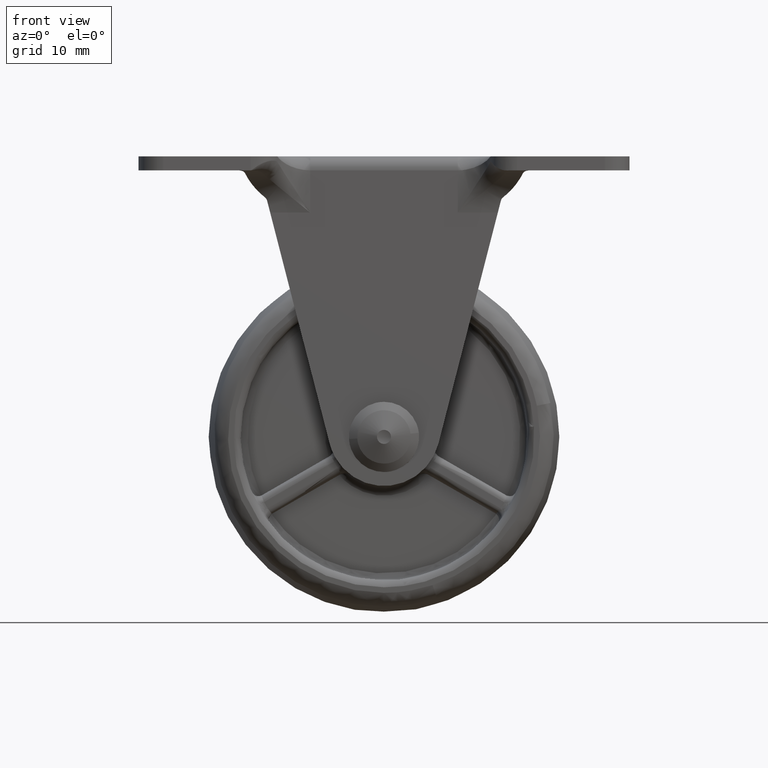
[diagram: clean part render]
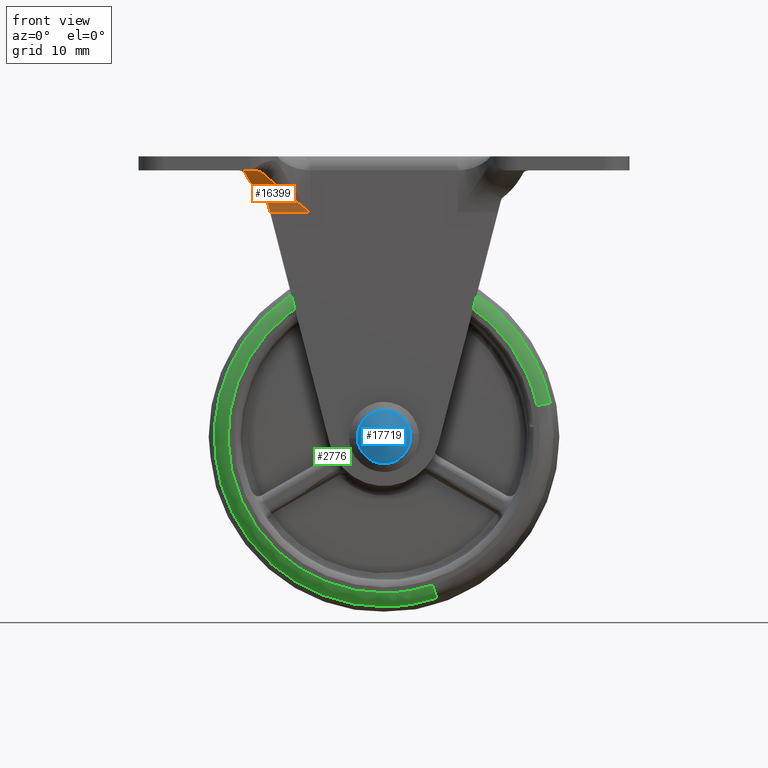
[diagram: same view with three faces highlighted in distinct colors, each labeled with its STEP entity id]
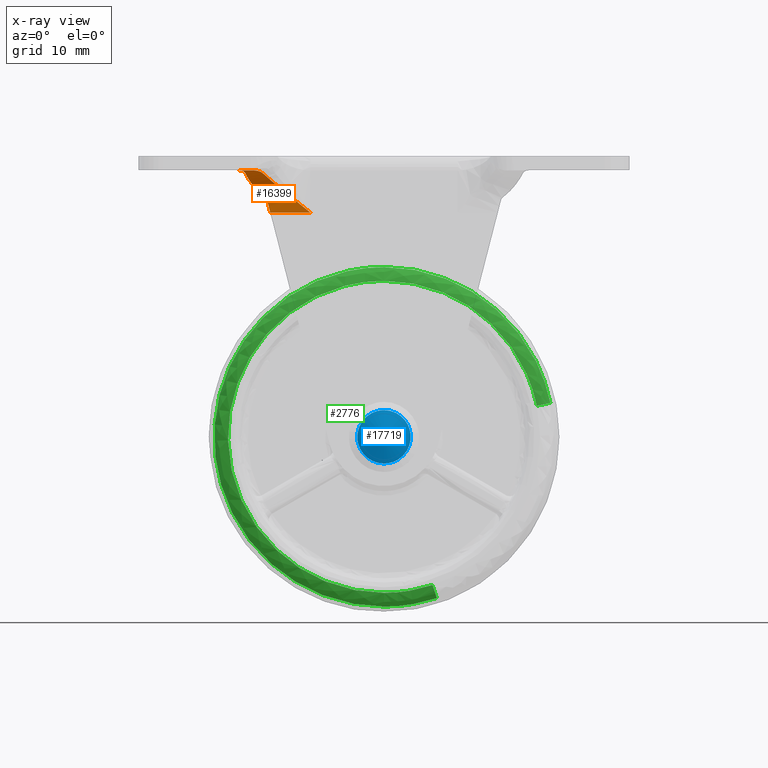
[diagram: x-ray of the same camera — body ghosted, the three highlighted faces saturated]
A machine part, front view with three faces highlighted in distinct colors.
The next image is the same camera in x-ray (body ghosted, the three faces saturated) — at least one of them is partly hidden behind the body in this view.
Their STEP definitions:

[orange] entity #16399 — the highlighted face is a freeform B-spline surface patch.
#12094=CARTESIAN_POINT('',(-17.017063330267199,-15.418175671828500,48.700735597347808));
#12095=VERTEX_POINT('',#12094);
#12103=CARTESIAN_POINT('',(-16.669632518436799,-15.242218088310850,48.187586281475703));
#12104=VERTEX_POINT('',#12103);
#12110=CARTESIAN_POINT('',(-17.017063330267199,-15.418175671828500,48.700735597347808));
#12111=CARTESIAN_POINT('',(-16.988380604225661,-15.408981597185280,48.677181715340481));
#12112=CARTESIAN_POINT('',(-16.931957748030911,-15.390895830864959,48.630848609241809));
#12113=CARTESIAN_POINT('',(-16.858029955614011,-15.361811739500880,48.552597771840453));
#12114=CARTESIAN_POINT('',(-16.794240848661989,-15.332211442687720,48.469520991827217));
#12115=CARTESIAN_POINT('',(-16.741464064902289,-15.302172234115099,48.380837943038379));
#12116=CARTESIAN_POINT('',(-16.698593578576801,-15.271900343804569,48.286976285991983));
#12117=CARTESIAN_POINT('',(-16.679322312750990,-15.252149180236540,48.220840198839113));
#12118=CARTESIAN_POINT('',(-16.669632518436799,-15.242218088310850,48.187586281475703));
#12119=B_SPLINE_CURVE_WITH_KNOTS('',3,(#12110,#12111,#12112,#12113,#12114,#12115,#12116,#12117,#12118),.UNSPECIFIED.,.F.,.U.,(4,1,1,1,1,1,4),(0.0,0.174898375755563,0.344046970783793,0.509209100096016,0.672277446546666,0.835217667393649,1.0),.UNSPECIFIED.);
#12120=EDGE_CURVE('',#12095,#12104,#12119,.T.);
#12845=CARTESIAN_POINT('',(-20.625857864982400,-21.0,52.500000000000000));
#12846=VERTEX_POINT('',#12845);
#12863=CARTESIAN_POINT('',(-19.790648462926050,-18.787686643208350,52.076773922697797));
#12864=VERTEX_POINT('',#12863);
#12885=CARTESIAN_POINT('',(-20.625857864982400,-21.0,52.500000000000000));
#12886=CARTESIAN_POINT('',(-20.585885648327569,-20.916500764249921,52.498989033029041));
#12887=CARTESIAN_POINT('',(-20.508207688247261,-20.754236800824010,52.497024422142168));
#12888=CARTESIAN_POINT('',(-20.398580188400441,-20.516688663820421,52.481814994756512));
#12889=CARTESIAN_POINT('',(-20.298388392006380,-20.292792938245700,52.459423238372963));
#12890=CARTESIAN_POINT('',(-20.207838309696982,-20.082619146225490,52.430480199964762));
#12891=CARTESIAN_POINT('',(-20.126880120443641,-19.886264531267049,52.396584969725318));
#12892=CARTESIAN_POINT('',(-20.055505750338760,-19.703731160211230,52.358979454948098));
#12893=CARTESIAN_POINT('',(-19.979679536785891,-19.496420694807430,52.309789511192022));
#12894=CARTESIAN_POINT('',(-19.904753268562722,-19.267315942630312,52.246000298641057));
#12895=CARTESIAN_POINT('',(-19.835272657800019,-19.019580622733319,52.165691158024408));
#12896=CARTESIAN_POINT('',(-19.805032203506428,-18.862433153550040,52.105434662676949));
#12897=CARTESIAN_POINT('',(-19.790648462926050,-18.787686643208350,52.076773922697797));
#12898=B_SPLINE_CURVE_WITH_KNOTS('',3,(#12885,#12886,#12887,#12888,#12889,#12890,#12891,#12892,#12893,#12894,#12895,#12896,#12897),.UNSPECIFIED.,.F.,.U.,(4,1,1,1,1,1,1,1,1,1,4),(0.0,0.114626834297044,0.222754187878724,0.324399616024495,0.419584285197503,0.508334009551228,0.590680680497223,0.666664277967578,0.788325319105402,0.899317858526195,1.0),.UNSPECIFIED.);
#12899=EDGE_CURVE('',#12846,#12864,#12898,.T.);
#13579=CARTESIAN_POINT('',(-19.723764869271800,-18.453569652344250,51.932834663832303));
#13580=VERTEX_POINT('',#13579);
#13581=CARTESIAN_POINT('',(-19.790648462926050,-18.787686643208350,52.076773922697797));
#13582=CARTESIAN_POINT('',(-19.785448228876870,-18.756026618957140,52.064265836791080));
#13583=CARTESIAN_POINT('',(-19.765764086371298,-18.643236392238990,52.018434987515327));
#13584=CARTESIAN_POINT('',(-19.741357457352048,-18.533016160527520,51.968690623335732));
#13585=CARTESIAN_POINT('',(-19.723764869271800,-18.453569652344250,51.932834663832303));
#13586=B_SPLINE_CURVE_WITH_KNOTS('',3,(#13581,#13582,#13583,#13584,#13585),.UNSPECIFIED.,.F.,.U.,(4,1,4),(0.859977106910163,0.899068081682101,0.999987448566256),.UNSPECIFIED.);
#13587=EDGE_CURVE('',#12864,#13580,#13586,.T.);
#14643=CARTESIAN_POINT('',(-19.0,-21.0,52.500000000000000));
#14644=VERTEX_POINT('',#14643);
#14665=CARTESIAN_POINT('',(-17.114383087480601,-18.499999568112301,51.954355859362501));
#14666=VERTEX_POINT('',#14665);
#14667=CARTESIAN_POINT('',(-17.114383087480601,-18.499999568112301,51.954355859362501));
#14668=CARTESIAN_POINT('',(-17.156587899162279,-18.589074002044558,51.993683073908016));
#14669=CARTESIAN_POINT('',(-17.236967056307069,-18.758716458374550,52.068581840945868));
#14670=CARTESIAN_POINT('',(-17.357384035496121,-19.003990672347680,52.159917264225378));
#14671=CARTESIAN_POINT('',(-17.470251993837799,-19.224043419890219,52.232539428584893));
#14672=CARTESIAN_POINT('',(-17.575709499550580,-19.417897778344539,52.288650608033372));
#14673=CARTESIAN_POINT('',(-17.752423373126259,-19.716349461657149,52.365146780168793));
#14674=CARTESIAN_POINT('',(-18.039869046535770,-20.114121789868008,52.441098402375978));
#14675=CARTESIAN_POINT('',(-18.481355702036328,-20.592905863990399,52.492739891490046));
#14676=CARTESIAN_POINT('',(-18.825556456169309,-20.863075822799889,52.497558097019407));
#14677=CARTESIAN_POINT('',(-19.0,-21.0,52.500000000000000));
#14678=B_SPLINE_CURVE_WITH_KNOTS('',3,(#14667,#14668,#14669,#14670,#14671,#14672,#14673,#14674,#14675,#14676,#14677),.UNSPECIFIED.,.F.,.U.,(4,1,1,1,1,1,1,1,4),(0.0,0.098252883985046,0.187122834745206,0.266647961301859,0.336881838191491,0.397902772223046,0.595426867639692,0.794959278560011,1.0),.UNSPECIFIED.);
#14679=EDGE_CURVE('',#14666,#14644,#14678,.T.);
#14743=CARTESIAN_POINT('',(-10.514713629548220,-15.000000000004050,46.500000000000000));
#14744=VERTEX_POINT('',#14743);
#14745=CARTESIAN_POINT('',(-10.514713629548220,-15.000000000004050,46.500000000000000));
#14746=CARTESIAN_POINT('',(-10.553574796363380,-15.000000000004039,46.531158227360869));
#14747=CARTESIAN_POINT('',(-10.592981917190620,-15.000246059780100,46.562754187820929));
#14748=CARTESIAN_POINT('',(-10.671275668474030,-15.001231147496080,46.625529620020693));
#14749=CARTESIAN_POINT('',(-10.788626419601350,-15.003446880302119,46.719621949452261));
#14750=CARTESIAN_POINT('',(-10.905706709492391,-15.007868818636391,46.813504859235962));
#14751=CARTESIAN_POINT('',(-11.139503390858209,-15.019641656794709,47.000998655420332));
#14752=CARTESIAN_POINT('',(-11.294883048645101,-15.031392389269490,47.125632091435072));
#14753=CARTESIAN_POINT('',(-11.759527305126941,-15.078363181752220,47.498492209143691));
#14754=CARTESIAN_POINT('',(-12.067305125842971,-15.125247471953781,47.745682278633112));
#14755=CARTESIAN_POINT('',(-12.678506065565561,-15.251460622779041,48.237451188848411));
#14756=CARTESIAN_POINT('',(-12.981933636293860,-15.330768057397380,48.482029797032382));
#14757=CARTESIAN_POINT('',(-13.433295495968080,-15.476515017997000,48.846970789636153));
#14758=CARTESIAN_POINT('',(-13.583116794170790,-15.529578840422740,48.968295783826463));
#14759=CARTESIAN_POINT('',(-13.881363292325750,-15.645349104419170,49.210296206333162));
#14760=CARTESIAN_POINT('',(-14.030120538933740,-15.708223939288731,49.331242931325413));
#14761=CARTESIAN_POINT('',(-14.469878575963969,-15.910679073999930,49.689691860326988));
#14762=CARTESIAN_POINT('',(-14.755344675376991,-16.064225036979568,49.923574288729171));
#14763=CARTESIAN_POINT('',(-15.308036542686541,-16.414356790121900,50.380027286982660));
#14764=CARTESIAN_POINT('',(-15.575328209487131,-16.610803552351651,50.602625959560690));
#14765=CARTESIAN_POINT('',(-15.894685821959420,-16.890402581500869,50.872327256063507));
#14766=CARTESIAN_POINT('',(-15.957916379934909,-16.948148591332799,50.925926590852249));
#14767=CARTESIAN_POINT('',(-16.082247557032520,-17.066892363494400,51.031775628293353));
#14768=CARTESIAN_POINT('',(-16.143177572975109,-17.127718487964881,51.083879360032043));
#14769=CARTESIAN_POINT('',(-16.322065998611961,-17.314769009580399,51.237629041026359));
#14770=CARTESIAN_POINT('',(-16.436139785280091,-17.445546955570752,51.336722629800391));
#14771=CARTESIAN_POINT('',(-16.652533507506259,-17.720752909448649,51.527381103694793));
#14772=CARTESIAN_POINT('',(-16.754864167862198,-17.865169441899280,51.618951370681607));
#14773=CARTESIAN_POINT('',(-16.945734710597190,-18.169859732558031,51.793499015774927));
#14774=CARTESIAN_POINT('',(-17.034296365384922,-18.330110266942832,51.876487209562562));
#14775=CARTESIAN_POINT('',(-17.114383087480601,-18.499999568112301,51.954355859362501));
#14776=B_SPLINE_CURVE_WITH_KNOTS('',3,(#14745,#14746,#14747,#14748,#14749,#14750,#14751,#14752,#14753,#14754,#14755,#14756,#14757,#14758,#14759,#14760,#14761,#14762,#14763,#14764,#14765,#14766,#14767,#14768,#14769,#14770,#14771,#14772,#14773,#14774,#14775),.UNSPECIFIED.,.F.,.U.,(4,2,1,2,2,2,2,2,2,2,2,2,2,2,2,4),(0.0,0.015625000000000,0.031250000000000,0.062500000000001,0.125000000000001,0.250000000000003,0.375000000000004,0.437500000000005,0.500000000000006,0.625000000000005,0.750000000000004,0.781250000000004,0.812500000000003,0.875000000000002,0.937500000000001,1.0),.UNSPECIFIED.);
#14777=EDGE_CURVE('',#14744,#14666,#14776,.T.);
#15760=CARTESIAN_POINT('',(-20.625857864982400,-21.0,52.500000000000000));
#15761=CARTESIAN_POINT('',(-19.0,-21.0,52.500000000000000));
#15762=QUASI_UNIFORM_CURVE('',1,(#15760,#15761),.UNSPECIFIED.,.F.,.U.);
#15763=EDGE_CURVE('',#12846,#14644,#15762,.T.);
#15861=CARTESIAN_POINT('',(-16.235487491042299,-15.0,46.500000000000000));
#15862=VERTEX_POINT('',#15861);
#15863=CARTESIAN_POINT('',(-16.235487491042299,-15.0,46.500000000000000));
#15864=CARTESIAN_POINT('',(-10.514713629548220,-15.000000000004050,46.500000000000000));
#15865=QUASI_UNIFORM_CURVE('',1,(#15863,#15864),.UNSPECIFIED.,.F.,.U.);
#15866=EDGE_CURVE('',#15862,#14744,#15865,.T.);
#16340=CARTESIAN_POINT('',(-20.878636470868258,-21.211253437201989,52.496279845476721));
#16341=CARTESIAN_POINT('',(-10.255615558515220,-21.211253437201989,52.496279845476721));
#16342=CARTESIAN_POINT('',(-20.878636470868262,-14.667462267042904,52.726822517375368));
#16343=CARTESIAN_POINT('',(-10.255615558515217,-14.667462267042904,52.726822517375368));
#16344=CARTESIAN_POINT('',(-20.878636470868258,-15.008125859434370,46.187839330438948));
#16345=CARTESIAN_POINT('',(-10.255615558515220,-15.008125859434370,46.187839330438948));
#16353=(BOUNDED_SURFACE()B_SPLINE_SURFACE(1,2,((#16340,#16342,#16344),(#16341,#16343,#16345)),.UNSPECIFIED.,.F.,.F.,.U.)B_SPLINE_SURFACE_WITH_KNOTS((2,2),(3,3),(0.0,10.623020912353040),(0.0,10.560252741404000),.UNSPECIFIED.)GEOMETRIC_REPRESENTATION_ITEM()RATIONAL_B_SPLINE_SURFACE(((1.0,0.675590207615660,1.0),(1.0,0.675590207615660,1.0)))REPRESENTATION_ITEM('')SURFACE());
#16354=ORIENTED_EDGE('',*,*,#15763,.F.);
#16355=ORIENTED_EDGE('',*,*,#12899,.T.);
#16356=ORIENTED_EDGE('',*,*,#13587,.T.);
#16357=CARTESIAN_POINT('',(-17.017063330267199,-15.418175671828500,48.700735597347808));
#16358=CARTESIAN_POINT('',(-17.362429407540219,-15.524129665844750,48.969471461019459));
#16359=CARTESIAN_POINT('',(-17.681054031346250,-15.658358590441701,49.253823134633151));
#16360=CARTESIAN_POINT('',(-18.046121091946699,-15.875262896523580,49.621596033373613));
#16361=CARTESIAN_POINT('',(-18.117470420582279,-15.921118246612480,49.695761701458807));
#16362=CARTESIAN_POINT('',(-18.256832435486000,-16.018212842697249,49.845105295313893));
#16363=CARTESIAN_POINT('',(-18.324917174342051,-16.069541944865549,49.920382268428391));
#16364=CARTESIAN_POINT('',(-18.521516524149369,-16.230003805891311,50.144291740608423));
#16365=CARTESIAN_POINT('',(-18.643321046325251,-16.346206471491449,50.291980334357483));
#16366=CARTESIAN_POINT('',(-18.869819775153761,-16.598325630464149,50.581932361849347));
#16367=CARTESIAN_POINT('',(-18.974514372122119,-16.734235957137020,50.724201277105699));
#16368=CARTESIAN_POINT('',(-19.119639098887848,-16.954046433729609,50.931750733548192));
#16369=CARTESIAN_POINT('',(-19.166026285731551,-17.029976964480479,50.999956704291570));
#16370=CARTESIAN_POINT('',(-19.254957610581759,-17.187399387416541,51.134087807970680));
#16371=CARTESIAN_POINT('',(-19.297594555372491,-17.269085450759981,51.200161034113442));
#16372=CARTESIAN_POINT('',(-19.419300899428119,-17.521621305297700,51.393447673936777));
#16373=CARTESIAN_POINT('',(-19.491109580771258,-17.697547027405061,51.513969297402163));
#16374=CARTESIAN_POINT('',(-19.618852199038809,-18.064317532707950,51.737160700487131));
#16375=CARTESIAN_POINT('',(-19.674783369243301,-18.255159277616158,51.839837502909852));
#16376=CARTESIAN_POINT('',(-19.723764869271779,-18.453569652344250,51.932834663832303));
#16377=B_SPLINE_CURVE_WITH_KNOTS('',3,(#16357,#16358,#16359,#16360,#16361,#16362,#16363,#16364,#16365,#16366,#16367,#16368,#16369,#16370,#16371,#16372,#16373,#16374,#16375,#16376),.UNSPECIFIED.,.F.,.U.,(4,2,2,2,2,2,2,2,2,4),(0.0,0.250000000000005,0.312500000000005,0.375000000000005,0.500000000000004,0.625000000000003,0.687500000000002,0.750000000000002,0.875000000000001,1.0),.UNSPECIFIED.);
#16378=EDGE_CURVE('',#12095,#13580,#16377,.T.);
#16379=ORIENTED_EDGE('',*,*,#16378,.F.);
#16380=ORIENTED_EDGE('',*,*,#12120,.T.);
#16381=CARTESIAN_POINT('',(-16.235487491042299,-15.0,46.500000000000000));
#16382=CARTESIAN_POINT('',(-16.457031842173471,-15.000000000000002,47.361175837832832));
#16383=CARTESIAN_POINT('',(-16.669632518436799,-15.242218088310850,48.187586281475767));
#16391=(BOUNDED_CURVE()B_SPLINE_CURVE(2,(#16381,#16382,#16383),.UNSPECIFIED.,.F.,.U.)CURVE()GEOMETRIC_REPRESENTATION_ITEM()QUASI_UNIFORM_CURVE()RATIONAL_B_SPLINE_CURVE((1.0,0.989856130610625,1.0))REPRESENTATION_ITEM(''));
#16392=EDGE_CURVE('',#15862,#12104,#16391,.T.);
#16393=ORIENTED_EDGE('',*,*,#16392,.F.);
#16394=ORIENTED_EDGE('',*,*,#15866,.T.);
#16395=ORIENTED_EDGE('',*,*,#14777,.T.);
#16396=ORIENTED_EDGE('',*,*,#14679,.T.);
#16397=EDGE_LOOP('',(#16354,#16355,#16356,#16379,#16380,#16393,#16394,#16395,#16396));
#16398=FACE_OUTER_BOUND('',#16397,.T.);
#16399=ADVANCED_FACE('',(#16398),#16353,.F.);

[blue] entity #17719 — the highlighted face is a freeform B-spline surface patch.
#17078=CARTESIAN_POINT('',(3.784145160678356,-16.371790412735081,0.449803014470829));
#17079=VERTEX_POINT('',#17078);
#17085=CARTESIAN_POINT('',(0.0,-16.371790412779148,-3.810784348188024));
#17086=VERTEX_POINT('',#17085);
#17087=CARTESIAN_POINT('',(3.784145160678355,-16.371790412735081,0.449803014470829));
#17088=CARTESIAN_POINT('',(3.810784348188021,-16.371790412779145,0.225690348692299));
#17089=CARTESIAN_POINT('',(3.810784348188020,-16.371790412779148,-3.634634E-015));
#17090=CARTESIAN_POINT('',(3.810784348188021,-16.371790412779145,-3.810784348188023));
#17091=CARTESIAN_POINT('',(0.0,-16.371790412779148,-3.810784348188024));
#17099=(BOUNDED_CURVE()B_SPLINE_CURVE(2,(#17087,#17088,#17089,#17090,#17091),.UNSPECIFIED.,.F.,.U.)B_SPLINE_CURVE_WITH_KNOTS((3,2,3),(0.229562473472548,0.250000000000000,0.500000000000000),.UNSPECIFIED.)CURVE()GEOMETRIC_REPRESENTATION_ITEM()RATIONAL_B_SPLINE_CURVE((0.956026754103415,0.976055948283157,1.0,0.707106781186548,1.0))REPRESENTATION_ITEM(''));
#17100=EDGE_CURVE('',#17079,#17086,#17099,.T.);
#17102=CARTESIAN_POINT('',(-3.803676467212667,-16.371790412773681,-0.232642818998604));
#17103=VERTEX_POINT('',#17102);
#17104=CARTESIAN_POINT('',(0.0,-16.371790412779148,-3.810784348188024));
#17105=CARTESIAN_POINT('',(-3.584827955898463,-16.371790412779148,-3.810784348188024));
#17106=CARTESIAN_POINT('',(-3.803676467212667,-16.371790412773688,-0.232642818998604));
#17114=(BOUNDED_CURVE()B_SPLINE_CURVE(2,(#17104,#17105,#17106),.UNSPECIFIED.,.F.,.U.)B_SPLINE_CURVE_WITH_KNOTS((3,3),(0.500000000000000,0.739332962236622),.UNSPECIFIED.)CURVE()GEOMETRIC_REPRESENTATION_ITEM()RATIONAL_B_SPLINE_CURVE((1.0,0.719603993289429,0.976072041661745))REPRESENTATION_ITEM(''));
#17115=EDGE_CURVE('',#17086,#17103,#17114,.T.);
#17148=CARTESIAN_POINT('',(0.0,-16.371790412779148,3.810784348188017));
#17149=VERTEX_POINT('',#17148);
#17150=CARTESIAN_POINT('',(-3.803676467212668,-16.371790412773684,-0.232642818998604));
#17151=CARTESIAN_POINT('',(-3.810784348188021,-16.371790412779152,-0.116429992231240));
#17152=CARTESIAN_POINT('',(-3.810784348188020,-16.371790412779148,-3.634634E-015));
#17153=CARTESIAN_POINT('',(-3.810784348188021,-16.371790412779145,3.810784348188018));
#17154=CARTESIAN_POINT('',(0.0,-16.371790412779148,3.810784348188017));
#17162=(BOUNDED_CURVE()B_SPLINE_CURVE(2,(#17150,#17151,#17152,#17153,#17154),.UNSPECIFIED.,.F.,.U.)B_SPLINE_CURVE_WITH_KNOTS((3,2,3),(0.739332962236623,0.750000000000000,1.0),.UNSPECIFIED.)CURVE()GEOMETRIC_REPRESENTATION_ITEM()RATIONAL_B_SPLINE_CURVE((0.976072041661746,0.987502787897120,1.0,0.707106781186548,1.0))REPRESENTATION_ITEM(''));
#17163=EDGE_CURVE('',#17103,#17149,#17162,.T.);
#17165=CARTESIAN_POINT('',(0.0,-16.371790412779148,3.810784348188017));
#17166=CARTESIAN_POINT('',(3.384641581085611,-16.371790412779152,3.810784348188018));
#17167=CARTESIAN_POINT('',(3.784145160678356,-16.371790412735077,0.449803014470829));
#17175=(BOUNDED_CURVE()B_SPLINE_CURVE(2,(#17165,#17166,#17167),.UNSPECIFIED.,.F.,.U.)B_SPLINE_CURVE_WITH_KNOTS((3,3),(0.0,0.229562473472548),.UNSPECIFIED.)CURVE()GEOMETRIC_REPRESENTATION_ITEM()RATIONAL_B_SPLINE_CURVE((1.0,0.731050832903391,0.956026754103415))REPRESENTATION_ITEM(''));
#17176=EDGE_CURVE('',#17149,#17079,#17175,.T.);
#17653=CARTESIAN_POINT('',(-3.761141241508484,-15.050495271448110,-3.761224447696831));
#17654=CARTESIAN_POINT('',(-2.060854991124940,-16.157804800003632,-4.121801165152907));
#17655=CARTESIAN_POINT('',(2.060866577821195,-16.157804800003632,-4.121801165152906));
#17656=CARTESIAN_POINT('',(3.761158687905566,-15.050483909462713,-3.761220747857450));
#17657=CARTESIAN_POINT('',(-4.121727465351702,-16.157858490751192,-2.060909324320750));
#17658=CARTESIAN_POINT('',(-2.279381798946756,-17.499999999999989,-2.279432224777401));
#17659=CARTESIAN_POINT('',(2.279394614261111,-17.500000000000000,-2.279432224777401));
#17660=CARTESIAN_POINT('',(4.121746195652123,-16.157844845754180,-2.060907102688899));
#17661=CARTESIAN_POINT('',(-4.121727465351702,-16.157858490751192,2.060909359862915));
#17662=CARTESIAN_POINT('',(-2.279381798946756,-17.499999999999989,2.279432264088180));
#17663=CARTESIAN_POINT('',(2.279394614261111,-17.500000000000000,2.279432264088180));
#17664=CARTESIAN_POINT('',(4.121746195652123,-16.157844845754180,2.060907138231026));
#17665=CARTESIAN_POINT('',(-3.761141230159302,-15.050495236594692,3.761224501212970));
#17666=CARTESIAN_POINT('',(-2.060854984310187,-16.157804758147311,4.121801222607123));
#17667=CARTESIAN_POINT('',(2.060866571006403,-16.157804758147311,4.121801222607123));
#17668=CARTESIAN_POINT('',(3.761158676556346,-15.050483874609368,3.761220801373549));
#17676=(BOUNDED_SURFACE()B_SPLINE_SURFACE(2,2,((#17653,#17657,#17661,#17665),(#17654,#17658,#17662,#17666),(#17655,#17659,#17663,#17667),(#17656,#17660,#17664,#17668)),.UNSPECIFIED.,.F.,.F.,.U.)B_SPLINE_SURFACE_WITH_KNOTS((3,1,3),(3,1,3),(0.0,4.329238994431178,8.658502329040335),(0.0,4.329334768413609,8.658669611490343),.UNSPECIFIED.)GEOMETRIC_REPRESENTATION_ITEM()RATIONAL_B_SPLINE_SURFACE(((1.212069237810681,1.106032273170811,1.106032273170811,1.212069241468080),(1.106036964639870,1.0,1.0,1.106036968297269),(1.106036964639870,1.0,1.0,1.106036968297269),(1.212070430099515,1.106033465459645,1.106033465459645,1.212070433756913)))REPRESENTATION_ITEM('')SURFACE());
#17677=ORIENTED_EDGE('',*,*,#17163,.F.);
#17678=ORIENTED_EDGE('',*,*,#17115,.F.);
#17679=ORIENTED_EDGE('',*,*,#17100,.F.);
#17680=ORIENTED_EDGE('',*,*,#17176,.F.);
#17681=EDGE_LOOP('',(#17677,#17678,#17679,#17680));
#17682=FACE_OUTER_BOUND('',#17681,.T.);
#17683=CARTESIAN_POINT('',(0.0,-17.428203230275500,0.999999999999965));
#17684=VERTEX_POINT('',#17683);
#17685=CARTESIAN_POINT('',(0.0,-17.428203230275500,-0.999999999999973));
#17686=VERTEX_POINT('',#17685);
#17687=CARTESIAN_POINT('',(0.0,-17.428203230275500,0.999999999999965));
#17688=CARTESIAN_POINT('',(0.999999999999969,-17.428203230275503,0.999999999999965));
#17689=CARTESIAN_POINT('',(0.999999999999969,-17.428203230275500,-3.634634E-015));
#17690=CARTESIAN_POINT('',(0.999999999999969,-17.428203230275503,-0.999999999999973));
#17691=CARTESIAN_POINT('',(0.0,-17.428203230275500,-0.999999999999973));
#17699=(BOUNDED_CURVE()B_SPLINE_CURVE(2,(#17687,#17688,#17689,#17690,#17691),.UNSPECIFIED.,.F.,.U.)B_SPLINE_CURVE_WITH_KNOTS((3,2,3),(0.0,0.250000000000000,0.500000000000000),.UNSPECIFIED.)CURVE()GEOMETRIC_REPRESENTATION_ITEM()RATIONAL_B_SPLINE_CURVE((1.0,0.707106781186548,1.0,0.707106781186548,1.0))REPRESENTATION_ITEM(''));
#17700=EDGE_CURVE('',#17684,#17686,#17699,.T.);
#17701=ORIENTED_EDGE('',*,*,#17700,.T.);
#17702=CARTESIAN_POINT('',(0.0,-17.428203230275500,-0.999999999999973));
#17703=CARTESIAN_POINT('',(-0.999999999999969,-17.428203230275503,-0.999999999999973));
#17704=CARTESIAN_POINT('',(-0.999999999999969,-17.428203230275500,-3.634634E-015));
#17705=CARTESIAN_POINT('',(-0.999999999999969,-17.428203230275503,0.999999999999965));
#17706=CARTESIAN_POINT('',(0.0,-17.428203230275500,0.999999999999965));
#17714=(BOUNDED_CURVE()B_SPLINE_CURVE(2,(#17702,#17703,#17704,#17705,#17706),.UNSPECIFIED.,.F.,.U.)B_SPLINE_CURVE_WITH_KNOTS((3,2,3),(0.500000000000000,0.750000000000000,1.0),.UNSPECIFIED.)CURVE()GEOMETRIC_REPRESENTATION_ITEM()RATIONAL_B_SPLINE_CURVE((1.0,0.707106781186548,1.0,0.707106781186548,1.0))REPRESENTATION_ITEM(''));
#17715=EDGE_CURVE('',#17686,#17684,#17714,.T.);
#17716=ORIENTED_EDGE('',*,*,#17715,.T.);
#17717=EDGE_LOOP('',(#17701,#17716));
#17718=FACE_BOUND('',#17717,.T.);
#17719=ADVANCED_FACE('',(#17682,#17718),#17676,.T.);

[green] entity #2776 — the highlighted face is a freeform B-spline surface patch.
#2600=CARTESIAN_POINT('',(-14.111032908909689,-10.495975510478074,-59.514212105914865));
#2601=CARTESIAN_POINT('',(-15.328297379254845,-10.495975510478075,-59.913260846600274));
#2602=CARTESIAN_POINT('',(-16.583496171588774,-10.495975510478072,-60.169090242742833));
#2603=CARTESIAN_POINT('',(-38.252586414331638,-10.495975510478074,-64.585594071154063));
#2604=CARTESIAN_POINT('',(-42.669090242742847,-10.495975510478072,-42.916503828411209));
#2605=CARTESIAN_POINT('',(-47.085594071154070,-10.495975510478074,-21.247413585668387));
#2606=CARTESIAN_POINT('',(-25.416503828411216,-10.495975510478072,-16.830909757257160));
#2607=CARTESIAN_POINT('',(-3.747413585668382,-10.495975510478074,-12.414405928845939));
#2608=CARTESIAN_POINT('',(0.669090242742843,-10.495975510478072,-34.083496171588777));
#2609=CARTESIAN_POINT('',(-13.520404011081407,-10.616437775503911,-61.315875660223078));
#2610=CARTESIAN_POINT('',(-14.842031234649072,-10.616437775503915,-61.749137036093764));
#2611=CARTESIAN_POINT('',(-16.204845097496325,-10.616437775503911,-62.026900088222462));
#2612=CARTESIAN_POINT('',(-39.731745185718808,-10.616437775503913,-66.822054990726144));
#2613=CARTESIAN_POINT('',(-44.526900088222455,-10.616437775503911,-43.295154902503668));
#2614=CARTESIAN_POINT('',(-49.322054990726130,-10.616437775503913,-19.768254814281203));
#2615=CARTESIAN_POINT('',(-25.795154902503672,-10.616437775503911,-14.973099911777529));
#2616=CARTESIAN_POINT('',(-2.268254814281208,-10.616437775503913,-10.177945009273863));
#2617=CARTESIAN_POINT('',(2.526900088222468,-10.616437775503911,-33.704845097496303));
#2618=CARTESIAN_POINT('',(-13.452605823836324,-8.729117677603615,-61.522688302572263));
#2619=CARTESIAN_POINT('',(-14.786212829481039,-8.729117677603615,-61.959876940815214));
#2620=CARTESIAN_POINT('',(-16.161379807334832,-8.729117677603615,-62.240157753454788));
#2621=CARTESIAN_POINT('',(-39.901537560789606,-8.729117677603611,-67.078777946119928));
#2622=CARTESIAN_POINT('',(-44.740157753454774,-8.729117677603615,-43.338620192665161));
#2623=CARTESIAN_POINT('',(-49.578777946119949,-8.729117677603611,-19.598462439210401));
#2624=CARTESIAN_POINT('',(-25.838620192665172,-8.729117677603615,-14.759842246545224));
#2625=CARTESIAN_POINT('',(-2.098462439210397,-8.729117677603611,-9.921222053880051));
#2626=CARTESIAN_POINT('',(2.740157753454775,-8.729117677603615,-33.661379807334811));
#2634=(BOUNDED_SURFACE()B_SPLINE_SURFACE(2,2,((#2600,#2609,#2618),(#2601,#2610,#2619),(#2602,#2611,#2620),(#2603,#2612,#2621),(#2604,#2613,#2622),(#2605,#2614,#2623),(#2606,#2615,#2624),(#2607,#2616,#2625),(#2608,#2617,#2626)),.UNSPECIFIED.,.F.,.F.,.U.)B_SPLINE_SURFACE_WITH_KNOTS((3,2,2,2,3),(3,3),(0.0,3.211409169134838,43.354062066337377,83.496714963539915,123.639367860742500),(0.0,3.193987550109449),.UNSPECIFIED.)GEOMETRIC_REPRESENTATION_ITEM()RATIONAL_B_SPLINE_SURFACE(((0.874161984763442,0.635090497688218,0.877741453515418),(0.892142821573109,0.648153818671448,0.895795917232473),(0.913548575791452,0.663705388445553,0.917289322515118),(0.645976392885448,0.469310580879902,0.648621500260454),(0.913548575791452,0.663705388445553,0.917289322515118),(0.645976392885448,0.469310580879902,0.648621500260454),(0.913548575791452,0.663705388445553,0.917289322515118),(0.645976392885448,0.469310580879902,0.648621500260454),(0.913548575791452,0.663705388445553,0.917289322515118)))REPRESENTATION_ITEM('')SURFACE());
#2635=CARTESIAN_POINT('',(-14.071526431065370,-10.500000000000000,-59.634715227152370));
#2636=VERTEX_POINT('',#2635);
#2637=CARTESIAN_POINT('',(-21.0,-10.500000000000000,-60.741401333999399));
#2638=VERTEX_POINT('',#2637);
#2639=CARTESIAN_POINT('',(-14.071526431065369,-10.500000000000000,-59.634715227152377));
#2640=CARTESIAN_POINT('',(-17.447377647675804,-10.499999999999998,-60.741401333999399));
#2641=CARTESIAN_POINT('',(-21.0,-10.500000000000000,-60.741401333999399));
#2649=(BOUNDED_CURVE()B_SPLINE_CURVE(2,(#2639,#2640,#2641),.UNSPECIFIED.,.F.,.U.)B_SPLINE_CURVE_WITH_KNOTS((3,3),(0.447031393975552,0.500000000000000),.UNSPECIFIED.)CURVE()GEOMETRIC_REPRESENTATION_ITEM()RATIONAL_B_SPLINE_CURVE((0.902183241053640,0.937943417941751,1.0))REPRESENTATION_ITEM(''));
#2650=EDGE_CURVE('',#2636,#2638,#2649,.T.);
#2651=ORIENTED_EDGE('',*,*,#2650,.T.);
#2652=CARTESIAN_POINT('',(-21.0,-10.500000000000000,-16.258598666000601));
#2653=VERTEX_POINT('',#2652);
#2654=CARTESIAN_POINT('',(-21.0,-10.500000000000000,-60.741401333999399));
#2655=CARTESIAN_POINT('',(-43.241401333999391,-10.500000000000000,-60.741401333999391));
#2656=CARTESIAN_POINT('',(-43.241401333999413,-10.500000000000000,-38.500000000000000));
#2657=CARTESIAN_POINT('',(-43.241401333999391,-10.500000000000000,-16.258598666000601));
#2658=CARTESIAN_POINT('',(-21.0,-10.500000000000000,-16.258598666000601));
#2666=(BOUNDED_CURVE()B_SPLINE_CURVE(2,(#2654,#2655,#2656,#2657,#2658),.UNSPECIFIED.,.F.,.U.)B_SPLINE_CURVE_WITH_KNOTS((3,2,3),(0.500000000000000,0.750000000000000,1.0),.UNSPECIFIED.)CURVE()GEOMETRIC_REPRESENTATION_ITEM()RATIONAL_B_SPLINE_CURVE((1.0,0.707106781186547,1.0,0.707106781186547,1.0))REPRESENTATION_ITEM(''));
#2667=EDGE_CURVE('',#2638,#2653,#2666,.T.);
#2668=ORIENTED_EDGE('',*,*,#2667,.T.);
#2669=CARTESIAN_POINT('',(0.793349473741785,-10.500000000000000,-34.058170171850307));
#2670=VERTEX_POINT('',#2669);
#2671=CARTESIAN_POINT('',(-21.0,-10.500000000000000,-16.258598666000601));
#2672=CARTESIAN_POINT('',(-2.834485148249928,-10.500000000000000,-16.258598666000609));
#2673=CARTESIAN_POINT('',(0.793349473741785,-10.500000000000000,-34.058170171850307));
#2681=(BOUNDED_CURVE()B_SPLINE_CURVE(2,(#2671,#2672,#2673),.UNSPECIFIED.,.F.,.U.)B_SPLINE_CURVE_WITH_KNOTS((3,3),(0.0,0.215767038506052),.UNSPECIFIED.)CURVE()GEOMETRIC_REPRESENTATION_ITEM()RATIONAL_B_SPLINE_CURVE((1.0,0.747213190312465,0.930770871022309))REPRESENTATION_ITEM(''));
#2682=EDGE_CURVE('',#2653,#2670,#2681,.T.);
#2683=ORIENTED_EDGE('',*,*,#2682,.T.);
#2684=CARTESIAN_POINT('',(2.722088697652068,-8.854157117021810,-33.665062567108492));
#2685=VERTEX_POINT('',#2684);
#2686=CARTESIAN_POINT('',(0.793349473741785,-10.500000000000000,-34.058170171850307));
#2687=CARTESIAN_POINT('',(2.431931255999696,-10.499999900687289,-33.724201249696002));
#2688=CARTESIAN_POINT('',(2.722088697652068,-8.854157117021810,-33.665062567108485));
#2696=(BOUNDED_CURVE()B_SPLINE_CURVE(2,(#2686,#2687,#2688),.UNSPECIFIED.,.F.,.U.)B_SPLINE_CURVE_WITH_KNOTS((3,3),(-1.697350950494602,-0.291164015721015),.UNSPECIFIED.)CURVE()GEOMETRIC_REPRESENTATION_ITEM()RATIONAL_B_SPLINE_CURVE((0.891894168807889,0.685530797738735,0.895292873989129))REPRESENTATION_ITEM(''));
#2697=EDGE_CURVE('',#2670,#2685,#2696,.T.);
#2698=ORIENTED_EDGE('',*,*,#2697,.T.);
#2699=CARTESIAN_POINT('',(-21.0,-8.854166666666689,-14.290206943750601));
#2700=VERTEX_POINT('',#2699);
#2701=CARTESIAN_POINT('',(-21.0,-8.854166666666689,-14.290206943750601));
#2702=CARTESIAN_POINT('',(-1.226815388082482,-8.854166758253946,-14.290206842148784));
#2703=CARTESIAN_POINT('',(2.722088697652068,-8.854157117021810,-33.665062567108485));
#2711=(BOUNDED_CURVE()B_SPLINE_CURVE(2,(#2701,#2702,#2703),.UNSPECIFIED.,.F.,.U.)B_SPLINE_CURVE_WITH_KNOTS((3,3),(0.0,0.215767026846942),.UNSPECIFIED.)CURVE()GEOMETRIC_REPRESENTATION_ITEM()RATIONAL_B_SPLINE_CURVE((1.0,0.747213203971962,0.930770851184997))REPRESENTATION_ITEM(''));
#2712=EDGE_CURVE('',#2700,#2685,#2711,.T.);
#2713=ORIENTED_EDGE('',*,*,#2712,.F.);
#2714=CARTESIAN_POINT('',(-45.047874610109112,-8.854162436439413,-41.295325278915698));
#2715=VERTEX_POINT('',#2714);
#2716=CARTESIAN_POINT('',(-45.047874610109098,-8.854162436439413,-41.295325278915691));
#2717=CARTESIAN_POINT('',(-45.209793792759001,-8.854162545540815,-39.902352265746387));
#2718=CARTESIAN_POINT('',(-45.209793770863122,-8.854162668058764,-38.500000083066709));
#2719=CARTESIAN_POINT('',(-45.209793392859254,-8.854164783172402,-14.290206982878134));
#2720=CARTESIAN_POINT('',(-21.0,-8.854166666666689,-14.290206943750601));
#2728=(BOUNDED_CURVE()B_SPLINE_CURVE(2,(#2716,#2717,#2718,#2719,#2720),.UNSPECIFIED.,.F.,.U.)B_SPLINE_CURVE_WITH_KNOTS((3,2,3),(0.730000280705535,0.750000000000000,1.0),.UNSPECIFIED.)CURVE()GEOMETRIC_REPRESENTATION_ITEM()RATIONAL_B_SPLINE_CURVE((0.956886670687944,0.976568871361915,1.0,0.707106781186547,1.0))REPRESENTATION_ITEM(''));
#2729=EDGE_CURVE('',#2715,#2700,#2728,.T.);
#2730=ORIENTED_EDGE('',*,*,#2729,.F.);
#2731=CARTESIAN_POINT('',(-21.0,-8.854142343433823,-62.709797432641437));
#2732=VERTEX_POINT('',#2731);
#2733=CARTESIAN_POINT('',(-21.0,-8.854142343433823,-62.709797432641437));
#2734=CARTESIAN_POINT('',(-42.558656189817590,-8.854152389936619,-62.709795288384605));
#2735=CARTESIAN_POINT('',(-45.047874610109098,-8.854162436439413,-41.295325278915691));
#2743=(BOUNDED_CURVE()B_SPLINE_CURVE(2,(#2733,#2734,#2735),.UNSPECIFIED.,.F.,.U.)B_SPLINE_CURVE_WITH_KNOTS((3,3),(0.500000000000000,0.730000280705535),.UNSPECIFIED.)CURVE()GEOMETRIC_REPRESENTATION_ITEM()RATIONAL_B_SPLINE_CURVE((1.0,0.730537909824633,0.956886670687944))REPRESENTATION_ITEM(''));
#2744=EDGE_CURVE('',#2732,#2715,#2743,.T.);
#2745=ORIENTED_EDGE('',*,*,#2744,.F.);
#2746=CARTESIAN_POINT('',(-13.458346598385569,-8.854142967169373,-61.505167791638648));
#2747=VERTEX_POINT('',#2746);
#2748=CARTESIAN_POINT('',(-13.458346598385567,-8.854142967169373,-61.505167791638648));
#2749=CARTESIAN_POINT('',(-17.132965463031478,-8.854142343433823,-62.709797432641452));
#2750=CARTESIAN_POINT('',(-21.0,-8.854142343433823,-62.709797432641437));
#2758=(BOUNDED_CURVE()B_SPLINE_CURVE(2,(#2748,#2749,#2750),.UNSPECIFIED.,.F.,.U.)B_SPLINE_CURVE_WITH_KNOTS((3,3),(0.447031385222976,0.500000000000000),.UNSPECIFIED.)CURVE()GEOMETRIC_REPRESENTATION_ITEM()RATIONAL_B_SPLINE_CURVE((0.902183229235559,0.937943407687471,1.0))REPRESENTATION_ITEM(''));
#2759=EDGE_CURVE('',#2747,#2732,#2758,.T.);
#2760=ORIENTED_EDGE('',*,*,#2759,.F.);
#2761=CARTESIAN_POINT('',(-14.071526431065369,-10.500000000000000,-59.634715227152370));
#2762=CARTESIAN_POINT('',(-13.550589624027079,-10.499999983901454,-61.223788342149135));
#2763=CARTESIAN_POINT('',(-13.458346598385573,-8.854142967169373,-61.505167791638655));
#2771=(BOUNDED_CURVE()B_SPLINE_CURVE(2,(#2761,#2762,#2763),.UNSPECIFIED.,.F.,.U.)B_SPLINE_CURVE_WITH_KNOTS((3,3),(-1.697350945050191,-0.291156029632522),.UNSPECIFIED.)CURVE()GEOMETRIC_REPRESENTATION_ITEM()RATIONAL_B_SPLINE_CURVE((0.853441147498384,0.655973783265145,0.856695602708604))REPRESENTATION_ITEM(''));
#2772=EDGE_CURVE('',#2636,#2747,#2771,.T.);
#2773=ORIENTED_EDGE('',*,*,#2772,.F.);
#2774=EDGE_LOOP('',(#2651,#2668,#2683,#2698,#2713,#2730,#2745,#2760,#2773));
#2775=FACE_OUTER_BOUND('',#2774,.T.);
#2776=ADVANCED_FACE('',(#2775),#2634,.T.);